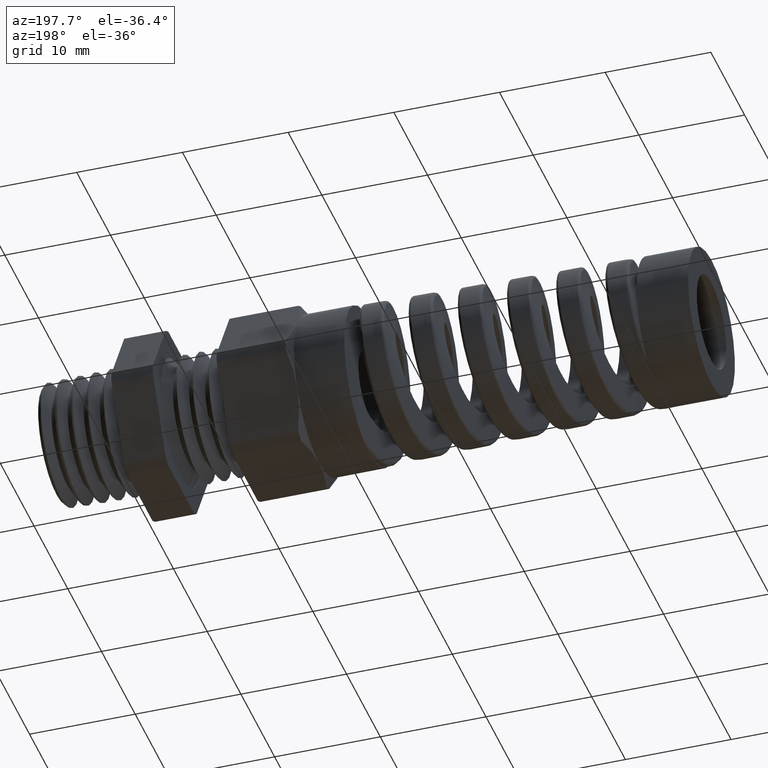
[diagram: clean part render]
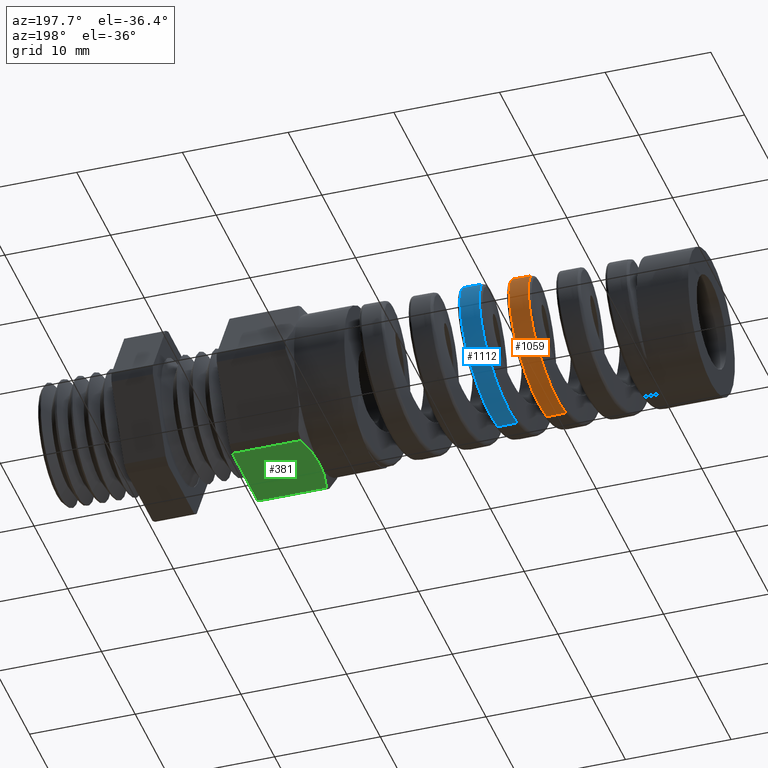
[diagram: same view with three faces highlighted in distinct colors, each labeled with its STEP entity id]
A machine part, auxiliary view with three faces highlighted in distinct colors.
Their STEP definitions:

[orange] entity #1059 — the highlighted conical surface has half-angle 1 deg.
#1059 = ADVANCED_FACE ( 'NONE', ( #5637 ), #5636, .T. ) ;
#1060 = ORIENTED_EDGE ( 'NONE', *, *, #1095, .T. ) ;
#1088 = VERTEX_POINT ( 'NONE', #7321 ) ;
#1092 = VERTEX_POINT ( 'NONE', #7406 ) ;
#1093 = ORIENTED_EDGE ( 'NONE', *, *, #1115, .T. ) ;
#1094 = VERTEX_POINT ( 'NONE', #7445 ) ;
#1095 = EDGE_CURVE ( 'NONE', #1088, #1092, #7443, .T. ) ;
#1107 = ORIENTED_EDGE ( 'NONE', *, *, #1108, .T. ) ;
#1108 = EDGE_CURVE ( 'NONE', #1094, #1109, #7520, .T. ) ;
#1109 = VERTEX_POINT ( 'NONE', #7642 ) ;
#1110 = ORIENTED_EDGE ( 'NONE', *, *, #1111, .F. ) ;
#1111 = EDGE_CURVE ( 'NONE', #1088, #1109, #7641, .T. ) ;
#1115 = EDGE_CURVE ( 'NONE', #1092, #1094, #7630, .T. ) ;
#1121 = EDGE_LOOP ( 'NONE', ( #1060, #1093, #1107, #1110 ) ) ;
#5632 = DIRECTION ( 'NONE',  ( 0.0000000000000000000, 0.0000000000000000000, -1.000000000000000000 ) ) ;
#5633 = DIRECTION ( 'NONE',  ( 1.000000000000000000, 0.0000000000000000000, 0.0000000000000000000 ) ) ;
#5634 = CARTESIAN_POINT ( 'NONE',  ( -0.6687499999999999600, 0.0000000000000000000, 0.0000000000000000000 ) ) ;
#5635 = AXIS2_PLACEMENT_3D ( 'NONE', #5634, #5633, #5632 ) ;
#5636 = CONICAL_SURFACE ( 'NONE', #5635, 0.2949999999999999800, 0.01745329251994342000 ) ;
#5637 = FACE_OUTER_BOUND ( 'NONE', #1121, .T. ) ;
#7321 = CARTESIAN_POINT ( 'NONE',  ( -1.586967370146656000, -8.417122530337597100E-014, -0.2789724561858728000 ) ) ;
#7406 = CARTESIAN_POINT ( 'NONE',  ( -1.496109359728096600, 8.002831743863339800E-013, 0.2805583886569774100 ) ) ;
#7408 = CARTESIAN_POINT ( 'NONE',  ( -1.513110849793759500, 0.1556788391959185400, 0.2335793244681691200 ) ) ;
#7409 = CARTESIAN_POINT ( 'NONE',  ( -1.514994570099448900, 0.1703354988591695400, 0.2227058327542272300 ) ) ;
#7410 = CARTESIAN_POINT ( 'NONE',  ( -1.516885506315558900, 0.1844960618386134700, 0.2110800219764213400 ) ) ;
#7411 = CARTESIAN_POINT ( 'NONE',  ( -1.517840461968148000, 0.1913636095300180500, 0.2048531593440207400 ) ) ;
#7412 = CARTESIAN_POINT ( 'NONE',  ( -1.520684673910040800, 0.2108566704722008900, 0.1853378106052884500 ) ) ;
#7413 = CARTESIAN_POINT ( 'NONE',  ( -1.522555314465035700, 0.2224121007027685700, 0.1712315819885418300 ) ) ;
#7414 = CARTESIAN_POINT ( 'NONE',  ( -1.526324096096505400, 0.2426999007746892000, 0.1408804732560915200 ) ) ;
#7415 = CARTESIAN_POINT ( 'NONE',  ( -1.528241391824345600, 0.2514844907948085000, 0.1244525455130138100 ) ) ;
#7416 = CARTESIAN_POINT ( 'NONE',  ( -1.532024259827501800, 0.2654719640076257400, 0.09066724487082188100 ) ) ;
#7417 = CARTESIAN_POINT ( 'NONE',  ( -1.533898665669906100, 0.2707708128520477900, 0.07323056716196335600 ) ) ;
#7418 = CARTESIAN_POINT ( 'NONE',  ( -1.536737944896176700, 0.2761519407258676800, 0.04625737354977232200 ) ) ;
#7419 = CARTESIAN_POINT ( 'NONE',  ( -1.537694292095382000, 0.2775169117848386200, 0.03708061587406606000 ) ) ;
#7420 = CARTESIAN_POINT ( 'NONE',  ( -1.539590755077823600, 0.2793182667241571600, 0.01879863939146259000 ) ) ;
#7421 = CARTESIAN_POINT ( 'NONE',  ( -1.540533353873124300, 0.2797642999802527100, 0.009670677997629531900 ) ) ;
#7422 = CARTESIAN_POINT ( 'NONE',  ( -1.543358977278022300, 0.2797693163182624100, -0.01767351891318006900 ) ) ;
#7423 = CARTESIAN_POINT ( 'NONE',  ( -1.545240008939636800, 0.2780081188315405300, -0.03585043476617247300 ) ) ;
#7424 = CARTESIAN_POINT ( 'NONE',  ( -1.549066083156121800, 0.2708131879331523400, -0.07208765652925806800 ) ) ;
#7425 = CARTESIAN_POINT ( 'NONE',  ( -1.550949985556431900, 0.2654860421542251100, -0.08958878699798725200 ) ) ;
#7426 = CARTESIAN_POINT ( 'NONE',  ( -1.553775312701966900, 0.2550325882058343500, -0.1148505546039602600 ) ) ;
#7427 = CARTESIAN_POINT ( 'NONE',  ( -1.554717851971338900, 0.2511335198793862000, -0.1231105112726528600 ) ) ;
#7428 = CARTESIAN_POINT ( 'NONE',  ( -1.556614585461594700, 0.2424889143296625700, -0.1393013310130534200 ) ) ;
#7429 = CARTESIAN_POINT ( 'NONE',  ( -1.557572731337894900, 0.2377189308795182600, -0.1472619119195425800 ) ) ;
#7430 = CARTESIAN_POINT ( 'NONE',  ( -1.560420078464774800, 0.2224212575994371800, -0.1701468332909421000 ) ) ;
#7431 = CARTESIAN_POINT ( 'NONE',  ( -1.562299255236198300, 0.2108528791031591100, -0.1842309348239542200 ) ) ;
#7432 = CARTESIAN_POINT ( 'NONE',  ( -1.566088139012995300, 0.1850146368401151000, -0.2100776183753747000 ) ) ;
#7433 = CARTESIAN_POINT ( 'NONE',  ( -1.568009642969026500, 0.1706069911901408300, -0.2218943041436421400 ) ) ;
#7434 = CARTESIAN_POINT ( 'NONE',  ( -1.571788119749637700, 0.1402265868573209500, -0.2421641886025169300 ) ) ;
#7435 = CARTESIAN_POINT ( 'NONE',  ( -1.573664103795690200, 0.1241483496437573600, -0.2507589757223159200 ) ) ;
#7436 = CARTESIAN_POINT ( 'NONE',  ( -1.576517925280433800, 0.09867884702267414000, -0.2612935597010561700 ) ) ;
#7437 = CARTESIAN_POINT ( 'NONE',  ( -1.577477866101587800, 0.08994180723877785700, -0.2644098357418993600 ) ) ;
#7438 = CARTESIAN_POINT ( 'NONE',  ( -1.579378564617366100, 0.07239261367281903100, -0.2697088776556088600 ) ) ;
#7439 = CARTESIAN_POINT ( 'NONE',  ( -1.580324469058421300, 0.06353523256799081800, -0.2719129025889888100 ) ) ;
#7440 = CARTESIAN_POINT ( 'NONE',  ( -1.583161185003857800, 0.03672034691231017300, -0.2772117795109261800 ) ) ;
#7441 = CARTESIAN_POINT ( 'NONE',  ( -1.585057455612082400, 0.01844012920980901300, -0.2790057938680865500 ) ) ;
#7442 = CARTESIAN_POINT ( 'NONE',  ( -1.586967370146656000, -8.417122530337597100E-014, -0.2789724561858728000 ) ) ;
#7443 = B_SPLINE_CURVE_WITH_KNOTS ( 'NONE', 3,
 ( #7442, #7441, #7440, #7439, #7438, #7437, #7436, #7435, #7434, #7433, #7432, #7431, #7430, #7429, #7428, #7427, #7426, #7425, #7424, #7423, #7422, #7421, #7420, #7419, #7418, #7417, #7416, #7415, #7414, #7413, #7412, #7411, #7410, #7409, #7408, #7483, #7482, #7481, #7480, #7479, #7478, #7477, #7476, #7475, #7474 ),
 .UNSPECIFIED., .F., .F.,
 ( 4, 2, 2, 2, 2, 2, 2, 2, 2, 2, 2, 2, 2, 2, 2, 2, 2, 1, 2, 2, 2, 2, 4 ),
 ( 0.08560869032127256500, 0.08701151721440444900, 0.08771293066097039800, 0.08841434410753634700, 0.08981717100066823100, 0.09121999789380012800, 0.09262282478693201200, 0.09332423823349796100, 0.09402565168006391000, 0.09542847857319579400, 0.09683130546632769100, 0.09753271891289362600, 0.09823413235945957500, 0.09963695925259145900, 0.1010397861457233400, 0.1024426130388552300, 0.1031440264854211800, 0.1038454399319871100, 0.1045468533785530600, 0.1052482668251190100, 0.1066510937182508900, 0.1073525071648168400, 0.1080539206113827800 ),
 .UNSPECIFIED. ) ;
#7445 = CARTESIAN_POINT ( 'NONE',  ( -1.424682225283209600, 3.647287461884801600E-013, 0.2818051539263494700 ) ) ;
#7474 = CARTESIAN_POINT ( 'NONE',  ( -1.496109359728096600, 8.002831743863339800E-013, 0.2805583886569774100 ) ) ;
#7475 = CARTESIAN_POINT ( 'NONE',  ( -1.497054379698786500, 0.009154564446061337600, 0.2805418932720044600 ) ) ;
#7476 = CARTESIAN_POINT ( 'NONE',  ( -1.498008885635690100, 0.01840200511251018400, 0.2800722485358943000 ) ) ;
#7477 = CARTESIAN_POINT ( 'NONE',  ( -1.499906251441030000, 0.03671538497857682000, 0.2782310165395065500 ) ) ;
#7478 = CARTESIAN_POINT ( 'NONE',  ( -1.500847730750519200, 0.04576318288822298800, 0.2768673087500764800 ) ) ;
#7479 = CARTESIAN_POINT ( 'NONE',  ( -1.503665730500103800, 0.07258711483947921600, 0.2714825994286077500 ) ) ;
#7480 = CARTESIAN_POINT ( 'NONE',  ( -1.505535719737208600, 0.09004681513396270400, 0.2661802068508624100 ) ) ;
#7481 = CARTESIAN_POINT ( 'NONE',  ( -1.508386667636961300, 0.1155758695175001500, 0.2555776412411004400 ) ) ;
#7482 = CARTESIAN_POINT ( 'NONE',  ( -1.509339181437512800, 0.1239232464986376600, 0.2516151555110003300 ) ) ;
#7483 = CARTESIAN_POINT ( 'NONE',  ( -1.511228529771848400, 0.1400473186945486700, 0.2429720507596754800 ) ) ;
#7520 = B_SPLINE_CURVE_WITH_KNOTS ( 'NONE', 3,
 ( #7610, #7609, #7608, #7607, #7606, #7605, #7604, #7603, #7602, #7601, #7600, #7599, #7598, #7597, #7596, #7595, #7594, #7593, #7592, #7591, #7590, #7589, #7588, #7587, #7586, #7585, #7584, #7583, #7582, #7581, #7580, #7579, #7578, #7577, #7576, #7575, #7574, #7573, #7572, #7571, #7570, #7569, #7568 ),
 .UNSPECIFIED., .F., .F.,
 ( 4, 2, 2, 2, 1, 2, 2, 2, 2, 2, 2, 2, 2, 2, 2, 2, 2, 2, 2, 2, 2, 4 ),
 ( 0.1430167359979316300, 0.1444234173814577000, 0.1458300987649837600, 0.1465334394567467900, 0.1472367801485098300, 0.1479401208402728600, 0.1486434615320358900, 0.1500501429155619600, 0.1514568242990880200, 0.1528635056826140900, 0.1535668463743771200, 0.1542701870661401500, 0.1556768684496662400, 0.1570835498331923100, 0.1577868905249553400, 0.1584902312167183700, 0.1598969126002444400, 0.1613035939837705000, 0.1627102753672965700, 0.1634136160590596300, 0.1641169567508226600, 0.1655236381343487300 ),
 .UNSPECIFIED. ) ;
#7568 = CARTESIAN_POINT ( 'NONE',  ( -1.515824475806052200, -1.017250759133178100E-015, -0.2802142600257693800 ) ) ;
#7569 = CARTESIAN_POINT ( 'NONE',  ( -1.513907059052255900, 0.01854011021240720800, -0.2802477286597014300 ) ) ;
#7570 = CARTESIAN_POINT ( 'NONE',  ( -1.512011065349929700, 0.03686125889220819000, -0.2784487134757090400 ) ) ;
#7571 = CARTESIAN_POINT ( 'NONE',  ( -1.509166116442926200, 0.06379930321004787000, -0.2731274478004392400 ) ) ;
#7572 = CARTESIAN_POINT ( 'NONE',  ( -1.508216526893202200, 0.07270006975640901100, -0.2709133813581038900 ) ) ;
#7573 = CARTESIAN_POINT ( 'NONE',  ( -1.506306917598595000, 0.09034052823200935900, -0.2655873484677180300 ) ) ;
#7574 = CARTESIAN_POINT ( 'NONE',  ( -1.505342490997912700, 0.09911948258004313300, -0.2624556144274042800 ) ) ;
#7575 = CARTESIAN_POINT ( 'NONE',  ( -1.502480966007582600, 0.1246811291448037800, -0.2518835154851732900 ) ) ;
#7576 = CARTESIAN_POINT ( 'NONE',  ( -1.500599432401587700, 0.1408297855314051300, -0.2432545490446857700 ) ) ;
#7577 = CARTESIAN_POINT ( 'NONE',  ( -1.496807849858051000, 0.1713615464006110800, -0.2228859676041822800 ) ) ;
#7578 = CARTESIAN_POINT ( 'NONE',  ( -1.494882154305593700, 0.1858332431490035700, -0.2110156400264046900 ) ) ;
#7579 = CARTESIAN_POINT ( 'NONE',  ( -1.491084843256544700, 0.2117750609152869200, -0.1850678727360698700 ) ) ;
#7580 = CARTESIAN_POINT ( 'NONE',  ( -1.489196556941433800, 0.2233994979713714900, -0.1709204284641854000 ) ) ;
#7581 = CARTESIAN_POINT ( 'NONE',  ( -1.486336422876976600, 0.2387795474586028900, -0.1479127621230209300 ) ) ;
#7582 = CARTESIAN_POINT ( 'NONE',  ( -1.485375327007302000, 0.2435690224514156200, -0.1399182952848487300 ) ) ;
#7583 = CARTESIAN_POINT ( 'NONE',  ( -1.483474180560885800, 0.2522447795236572000, -0.1236697345677430800 ) ) ;
#7584 = CARTESIAN_POINT ( 'NONE',  ( -1.482529192405276100, 0.2561599259730749100, -0.1153773610342700600 ) ) ;
#7585 = CARTESIAN_POINT ( 'NONE',  ( -1.479695759200092600, 0.2666602723646784300, -0.09000681225952868200 ) ) ;
#7586 = CARTESIAN_POINT ( 'NONE',  ( -1.477801922148382000, 0.2720253385209826500, -0.07237412790813567400 ) ) ;
#7587 = CARTESIAN_POINT ( 'NONE',  ( -1.473970694270922800, 0.2792413946338959100, -0.03602241292163350900 ) ) ;
#7588 = CARTESIAN_POINT ( 'NONE',  ( -1.472081984037360500, 0.2810126099612303400, -0.01777374197619469400 ) ) ;
#7589 = CARTESIAN_POINT ( 'NONE',  ( -1.469245175367554400, 0.2810091089477689800, 0.009700286949967855100 ) ) ;
#7590 = CARTESIAN_POINT ( 'NONE',  ( -1.468298820027905900, 0.2805613394764421300, 0.01887524288419123800 ) ) ;
#7591 = CARTESIAN_POINT ( 'NONE',  ( -1.466394149666539800, 0.2787497223132775500, 0.03725883339077034500 ) ) ;
#7592 = CARTESIAN_POINT ( 'NONE',  ( -1.465435744182050000, 0.2773790530822541900, 0.04646760679894846500 ) ) ;
#7593 = CARTESIAN_POINT ( 'NONE',  ( -1.462590496158362700, 0.2719791086687902100, 0.07353656795850058200 ) ) ;
#7594 = CARTESIAN_POINT ( 'NONE',  ( -1.460711832285626300, 0.2666600844902540800, 0.09105088684051788900 ) ) ;
#7595 = CARTESIAN_POINT ( 'NONE',  ( -1.456916299025595100, 0.2526001482012903400, 0.1250131622910084800 ) ) ;
#7596 = CARTESIAN_POINT ( 'NONE',  ( -1.454991766486412300, 0.2437803818909428900, 0.1415034193346358900 ) ) ;
#7597 = CARTESIAN_POINT ( 'NONE',  ( -1.451210585674233200, 0.2234132513978171200, 0.1719760000840733800 ) ) ;
#7598 = CARTESIAN_POINT ( 'NONE',  ( -1.449333534040754700, 0.2118043098038021900, 0.1861526157151804100 ) ) ;
#7599 = CARTESIAN_POINT ( 'NONE',  ( -1.446477023687713600, 0.1921982927525553200, 0.2057795026855290300 ) ) ;
#7600 = CARTESIAN_POINT ( 'NONE',  ( -1.445520926926867800, 0.1853112905966750900, 0.2120224236296460200 ) ) ;
#7601 = CARTESIAN_POINT ( 'NONE',  ( -1.443626535903144400, 0.1711007819677904900, 0.2236893353194760500 ) ) ;
#7602 = CARTESIAN_POINT ( 'NONE',  ( -1.441739954758139100, 0.1563861378467454600, 0.2346074184448256900 ) ) ;
#7603 = CARTESIAN_POINT ( 'NONE',  ( -1.439851028698902100, 0.1406785613915476900, 0.2440473348613747000 ) ) ;
#7604 = CARTESIAN_POINT ( 'NONE',  ( -1.437952952592599800, 0.1244679496106839700, 0.2527369093696783000 ) ) ;
#7605 = CARTESIAN_POINT ( 'NONE',  ( -1.436994090914047300, 0.1160635951081423900, 0.2567250030088226700 ) ) ;
#7606 = CARTESIAN_POINT ( 'NONE',  ( -1.434136226435637200, 0.09045714394084913800, 0.2673580682693082500 ) ) ;
#7607 = CARTESIAN_POINT ( 'NONE',  ( -1.432261417663591900, 0.07292825161279994900, 0.2726848994732552500 ) ) ;
#7608 = CARTESIAN_POINT ( 'NONE',  ( -1.428490737858077600, 0.03698568379209238300, 0.2799012786592580700 ) ) ;
#7609 = CARTESIAN_POINT ( 'NONE',  ( -1.426575118891028700, 0.01837353674951972300, 0.2817721133454988400 ) ) ;
#7610 = CARTESIAN_POINT ( 'NONE',  ( -1.424682225283209600, 3.647287461884801600E-013, 0.2818051539263494700 ) ) ;
#7627 = DIRECTION ( 'NONE',  ( 0.9998476951563912700, 2.137303368083806700E-018, 0.01745240643728363700 ) ) ;
#7628 = VECTOR ( 'NONE', #7627, 39.37007874015748100 ) ;
#7629 = CARTESIAN_POINT ( 'NONE',  ( -0.6687499999999999600, 3.612708057484692000E-017, 0.2949999999999999800 ) ) ;
#7630 = LINE ( 'NONE', #7629, #7628 ) ;
#7638 = DIRECTION ( 'NONE',  ( 0.9998476951563912700, 0.0000000000000000000, -0.01745240643728363700 ) ) ;
#7639 = VECTOR ( 'NONE', #7638, 39.37007874015748100 ) ;
#7640 = CARTESIAN_POINT ( 'NONE',  ( -0.6687499999999999600, 0.0000000000000000000, -0.2949999999999999800 ) ) ;
#7641 = LINE ( 'NONE', #7640, #7639 ) ;
#7642 = CARTESIAN_POINT ( 'NONE',  ( -1.515824475806052200, -1.017250759133178100E-015, -0.2802142600257693800 ) ) ;

[blue] entity #1112 — the highlighted conical surface has half-angle 1 deg.
#1085 = ORIENTED_EDGE ( 'NONE', *, *, #1086, .T. ) ;
#1086 = EDGE_CURVE ( 'NONE', #1106, #1087, #7326, .T. ) ;
#1087 = VERTEX_POINT ( 'NONE', #7322 ) ;
#1089 = ORIENTED_EDGE ( 'NONE', *, *, #1090, .T. ) ;
#1090 = EDGE_CURVE ( 'NONE', #1087, #1091, #7407, .T. ) ;
#1091 = VERTEX_POINT ( 'NONE', #7320 ) ;
#1102 = ORIENTED_EDGE ( 'NONE', *, *, #1103, .F. ) ;
#1103 = EDGE_CURVE ( 'NONE', #1114, #1091, #7492, .T. ) ;
#1104 = ORIENTED_EDGE ( 'NONE', *, *, #1105, .T. ) ;
#1105 = EDGE_CURVE ( 'NONE', #1114, #1106, #7487, .T. ) ;
#1106 = VERTEX_POINT ( 'NONE', #7488 ) ;
#1112 = ADVANCED_FACE ( 'NONE', ( #7637 ), #7635, .T. ) ;
#1113 = EDGE_LOOP ( 'NONE', ( #1104, #1085, #1089, #1102 ) ) ;
#1114 = VERTEX_POINT ( 'NONE', #7636 ) ;
#7320 = CARTESIAN_POINT ( 'NONE',  ( -1.333532492928136700, 4.183276635515451400E-016, -0.2833961784227969100 ) ) ;
#7322 = CARTESIAN_POINT ( 'NONE',  ( -1.242389884953484200, -1.119310506190036000E-012, 0.2849870785627215400 ) ) ;
#7323 = DIRECTION ( 'NONE',  ( 0.9998476951563912700, 2.137303368083806700E-018, 0.01745240643728363700 ) ) ;
#7324 = VECTOR ( 'NONE', #7323, 39.37007874015748100 ) ;
#7325 = CARTESIAN_POINT ( 'NONE',  ( -0.6687499999999999600, 3.612708057484692000E-017, 0.2949999999999999800 ) ) ;
#7326 = LINE ( 'NONE', #7325, #7324 ) ;
#7362 = CARTESIAN_POINT ( 'NONE',  ( -1.331634334730868800, 0.01851915997278168200, -0.2834293108973741600 ) ) ;
#7363 = CARTESIAN_POINT ( 'NONE',  ( -1.329742786458878000, 0.03702481373963924900, -0.2816599243796380500 ) ) ;
#7364 = CARTESIAN_POINT ( 'NONE',  ( -1.325906407626043800, 0.07385030705563976100, -0.2743852221706516400 ) ) ;
#7365 = CARTESIAN_POINT ( 'NONE',  ( -1.324019497577883200, 0.09160603333586660200, -0.2689962532154782600 ) ) ;
#7366 = CARTESIAN_POINT ( 'NONE',  ( -1.321176461558337200, 0.1172868902318123900, -0.2583897192720112100 ) ) ;
#7367 = CARTESIAN_POINT ( 'NONE',  ( -1.320226818646506700, 0.1256872390023127400, -0.2544306066078017000 ) ) ;
#7368 = CARTESIAN_POINT ( 'NONE',  ( -1.318314816174991400, 0.1421597170944340300, -0.2456456050470635600 ) ) ;
#7369 = CARTESIAN_POINT ( 'NONE',  ( -1.317350341671649200, 0.1502461670001548300, -0.2408036580856358400 ) ) ;
#7370 = CARTESIAN_POINT ( 'NONE',  ( -1.314489362577466100, 0.1734808410608864300, -0.2252848697339304400 ) ) ;
#7371 = CARTESIAN_POINT ( 'NONE',  ( -1.312606975232630800, 0.1877953278278312900, -0.2135386210133433400 ) ) ;
#7372 = CARTESIAN_POINT ( 'NONE',  ( -1.308812776134808500, 0.2140855171200515300, -0.1872720199700375900 ) ) ;
#7373 = CARTESIAN_POINT ( 'NONE',  ( -1.306890066642195400, 0.2260896400171272800, -0.1726399179915904800 ) ) ;
#7374 = CARTESIAN_POINT ( 'NONE',  ( -1.303099404960015800, 0.2466834419011714500, -0.1417953262275332400 ) ) ;
#7375 = CARTESIAN_POINT ( 'NONE',  ( -1.301211796836690500, 0.2554275910945892900, -0.1254579041127966700 ) ) ;
#7376 = CARTESIAN_POINT ( 'NONE',  ( -1.298343373850806800, 0.2661559920203113700, -0.09955031714156585600 ) ) ;
#7377 = CARTESIAN_POINT ( 'NONE',  ( -1.297382492590519700, 0.2693215147124706200, -0.09068585223107923600 ) ) ;
#7378 = CARTESIAN_POINT ( 'NONE',  ( -1.295482762242432300, 0.2747107808911495300, -0.07287541889260673600 ) ) ;
#7379 = CARTESIAN_POINT ( 'NONE',  ( -1.293593804735205800, 0.2792006452543648900, -0.05488802818421805600 ) ) ;
#7380 = CARTESIAN_POINT ( 'NONE',  ( -1.291706155054656900, 0.2819184303328159900, -0.03655406168698447500 ) ) ;
#7381 = CARTESIAN_POINT ( 'NONE',  ( -1.289809189234547100, 0.2837382194625419100, -0.01804551148777121900 ) ) ;
#7382 = CARTESIAN_POINT ( 'NONE',  ( -1.288851062786557700, 0.2841982673230558600, -0.008655055532402089500 ) ) ;
#7383 = CARTESIAN_POINT ( 'NONE',  ( -1.285985897316400500, 0.2841791797819723200, 0.01940930120193923300 ) ) ;
#7384 = CARTESIAN_POINT ( 'NONE',  ( -1.284099949617327500, 0.2823367516661060600, 0.03785236000965427200 ) ) ;
#7385 = CARTESIAN_POINT ( 'NONE',  ( -1.281258332153921300, 0.2769047884945902100, 0.06512331168897370100 ) ) ;
#7386 = CARTESIAN_POINT ( 'NONE',  ( -1.280309478375943400, 0.2746462279965108900, 0.07414760295083194800 ) ) ;
#7387 = CARTESIAN_POINT ( 'NONE',  ( -1.278400178924638000, 0.2692070474221360300, 0.09205941388812163800 ) ) ;
#7388 = CARTESIAN_POINT ( 'NONE',  ( -1.277444033970703600, 0.2660350279054453100, 0.1009011206064763400 ) ) ;
#7389 = CARTESIAN_POINT ( 'NONE',  ( -1.274602707567868500, 0.2553443823003614900, 0.1266584843532217700 ) ) ;
#7390 = CARTESIAN_POINT ( 'NONE',  ( -1.272726016862581400, 0.2466121384969403900, 0.1429861440389735300 ) ) ;
#7391 = CARTESIAN_POINT ( 'NONE',  ( -1.269878734617309500, 0.2311011841453291000, 0.1662024167732205300 ) ) ;
#7392 = CARTESIAN_POINT ( 'NONE',  ( -1.268918955666127300, 0.2254912868407589200, 0.1737667575274129700 ) ) ;
#7393 = CARTESIAN_POINT ( 'NONE',  ( -1.267011471082266200, 0.2136313403439739100, 0.1882068133733252300 ) ) ;
#7394 = CARTESIAN_POINT ( 'NONE',  ( -1.266063674229627600, 0.2073862538330075200, 0.1950872574770013100 ) ) ;
#7395 = CARTESIAN_POINT ( 'NONE',  ( -1.263226428943072400, 0.1877304019130446600, 0.2147348142492662700 ) ) ;
#7396 = CARTESIAN_POINT ( 'NONE',  ( -1.261345836891008400, 0.1734075702860590800, 0.2265177729274751300 ) ) ;
#7397 = CARTESIAN_POINT ( 'NONE',  ( -1.257530307208634800, 0.1422447477802156700, 0.2473556941659464900 ) ) ;
#7398 = CARTESIAN_POINT ( 'NONE',  ( -1.255642351208352300, 0.1257927615500181200, 0.2561344957608028800 ) ) ;
#7399 = CARTESIAN_POINT ( 'NONE',  ( -1.252813216419012400, 0.1001393448841524100, 0.2667804212519583300 ) ) ;
#7400 = CARTESIAN_POINT ( 'NONE',  ( -1.251868999520454200, 0.09140973363116500200, 0.2699155145793638000 ) ) ;
#7401 = CARTESIAN_POINT ( 'NONE',  ( -1.249969381437568100, 0.07358786899186285600, 0.2753431300321352900 ) ) ;
#7402 = CARTESIAN_POINT ( 'NONE',  ( -1.249008959476694900, 0.06444671330565229800, 0.2776428019694561200 ) ) ;
#7403 = CARTESIAN_POINT ( 'NONE',  ( -1.246153352649397700, 0.03698921408791917100, 0.2831261732485475000 ) ) ;
#7404 = CARTESIAN_POINT ( 'NONE',  ( -1.244276602621644500, 0.01855580024097971300, 0.2849541457833955100 ) ) ;
#7405 = CARTESIAN_POINT ( 'NONE',  ( -1.242389884953484200, -1.119310506190036000E-012, 0.2849870785627215400 ) ) ;
#7407 = B_SPLINE_CURVE_WITH_KNOTS ( 'NONE', 3,
 ( #7405, #7404, #7403, #7402, #7401, #7400, #7399, #7398, #7397, #7396, #7395, #7394, #7393, #7392, #7391, #7390, #7389, #7388, #7387, #7386, #7385, #7384, #7383, #7382, #7381, #7380, #7379, #7378, #7377, #7376, #7375, #7374, #7373, #7372, #7371, #7370, #7369, #7368, #7367, #7366, #7365, #7364, #7363, #7362, #7446 ),
 .UNSPECIFIED., .F., .F.,
 ( 4, 2, 2, 2, 2, 2, 2, 2, 2, 2, 2, 2, 2, 1, 2, 2, 2, 2, 2, 2, 2, 2, 4 ),
 ( 0.09760750882082160100, 0.09903044666253864300, 0.09974191558339716400, 0.1004533845042556700, 0.1018763223459727100, 0.1032992601876897600, 0.1040107291085482600, 0.1047221980294067900, 0.1061451358711238300, 0.1068566047919823500, 0.1075680737128408600, 0.1089910115545579000, 0.1097024804754164200, 0.1104139493962749400, 0.1111254183171334500, 0.1118368872379919700, 0.1132598250797090100, 0.1146827629214260400, 0.1161057007631430800, 0.1168171696840016000, 0.1175286386048601300, 0.1189515764465771700, 0.1203745142882942100 ),
 .UNSPECIFIED. ) ;
#7446 = CARTESIAN_POINT ( 'NONE',  ( -1.333532492928136700, 4.183276635515451400E-016, -0.2833961784227969100 ) ) ;
#7484 = CARTESIAN_POINT ( 'NONE',  ( -1.401464967749319400, 0.03692413679248169500, -0.2804054733823515600 ) ) ;
#7485 = CARTESIAN_POINT ( 'NONE',  ( -1.403357480913037400, 0.01843135554809960400, -0.2821773787239085200 ) ) ;
#7486 = CARTESIAN_POINT ( 'NONE',  ( -1.405247317430771100, -3.085267671335399900E-016, -0.2821443915047877100 ) ) ;
#7487 = B_SPLINE_CURVE_WITH_KNOTS ( 'NONE', 3,
 ( #7486, #7485, #7484, #7564, #7563, #7562, #7561, #7560, #7559, #7558, #7557, #7556, #7555, #7554, #7553, #7552, #7551, #7550, #7549, #7548, #7547, #7546, #7545, #7544, #7543, #7542, #7541, #7540, #7539, #7538, #7537, #7536, #7535, #7534, #7533, #7532, #7531, #7530, #7529, #7528, #7527, #7526, #7525, #7524, #7523 ),
 .UNSPECIFIED., .F., .F.,
 ( 4, 2, 2, 2, 2, 2, 2, 2, 2, 2, 2, 2, 2, 2, 2, 2, 1, 2, 2, 2, 2, 2, 4 ),
 ( 0.1306311733183600200, 0.1320500597961231100, 0.1334689462738862000, 0.1341783895127677500, 0.1348878327516492800, 0.1363067192294124000, 0.1370161624682939300, 0.1377256057071754900, 0.1391444921849385700, 0.1405633786627016900, 0.1412728219015832500, 0.1419822651404647800, 0.1434011516182278600, 0.1448200380959909800, 0.1462389245737540600, 0.1469483678126356200, 0.1476578110515171500, 0.1483672542903987100, 0.1490766975292802700, 0.1504955840070433500, 0.1512050272459249100, 0.1519144704848064400, 0.1533333569625695600 ),
 .UNSPECIFIED. ) ;
#7488 = CARTESIAN_POINT ( 'NONE',  ( -1.314393169253360400, -5.788518035903223500E-013, 0.2837302565602222700 ) ) ;
#7489 = DIRECTION ( 'NONE',  ( 0.9998476951563912700, 0.0000000000000000000, -0.01745240643728363700 ) ) ;
#7490 = VECTOR ( 'NONE', #7489, 39.37007874015748100 ) ;
#7491 = CARTESIAN_POINT ( 'NONE',  ( -0.6687499999999999600, 0.0000000000000000000, -0.2949999999999999800 ) ) ;
#7492 = LINE ( 'NONE', #7491, #7490 ) ;
#7523 = CARTESIAN_POINT ( 'NONE',  ( -1.314393169253360400, -5.788518035903223500E-013, 0.2837302565602222700 ) ) ;
#7524 = CARTESIAN_POINT ( 'NONE',  ( -1.316278426222088100, 0.01851837736630582800, 0.2836973492774644800 ) ) ;
#7525 = CARTESIAN_POINT ( 'NONE',  ( -1.318147064880010000, 0.03685858127206206900, 0.2818687258081021800 ) ) ;
#7526 = CARTESIAN_POINT ( 'NONE',  ( -1.320981079805968200, 0.06409591464138401900, 0.2764327135723540500 ) ) ;
#7527 = CARTESIAN_POINT ( 'NONE',  ( -1.321935939374661700, 0.07317667991189198700, 0.2741532715127778500 ) ) ;
#7528 = CARTESIAN_POINT ( 'NONE',  ( -1.323837708958407500, 0.09099024480199925700, 0.2687318195076414100 ) ) ;
#7529 = CARTESIAN_POINT ( 'NONE',  ( -1.324782135516477100, 0.09970111368408714200, 0.2656026532861502400 ) ) ;
#7530 = CARTESIAN_POINT ( 'NONE',  ( -1.327606661400047000, 0.1252609743799320800, 0.2549943007406070800 ) ) ;
#7531 = CARTESIAN_POINT ( 'NONE',  ( -1.329477366947061600, 0.1415426786534662900, 0.2463057212396961800 ) ) ;
#7532 = CARTESIAN_POINT ( 'NONE',  ( -1.332326212920103400, 0.1647868786564844800, 0.2307757424106239600 ) ) ;
#7533 = CARTESIAN_POINT ( 'NONE',  ( -1.333278071448098100, 0.1722939589651260300, 0.2252028534248469400 ) ) ;
#7534 = CARTESIAN_POINT ( 'NONE',  ( -1.335165646325260600, 0.1865965487719860600, 0.2134586323799221600 ) ) ;
#7535 = CARTESIAN_POINT ( 'NONE',  ( -1.337046077160495500, 0.2002618480653424700, 0.2010676069585597100 ) ) ;
#7536 = CARTESIAN_POINT ( 'NONE',  ( -1.338930366510764800, 0.2126666585847514200, 0.1873999029894573600 ) ) ;
#7537 = CARTESIAN_POINT ( 'NONE',  ( -1.340824763201644600, 0.2244303893030959500, 0.1730840748786170400 ) ) ;
#7538 = CARTESIAN_POINT ( 'NONE',  ( -1.341782366474563600, 0.2300195123783227700, 0.1655576208781077700 ) ) ;
#7539 = CARTESIAN_POINT ( 'NONE',  ( -1.344633671265331500, 0.2455261782650966200, 0.1423605455064135500 ) ) ;
#7540 = CARTESIAN_POINT ( 'NONE',  ( -1.346505413097725400, 0.2542178184211927300, 0.1260922128114092500 ) ) ;
#7541 = CARTESIAN_POINT ( 'NONE',  ( -1.350272209570028600, 0.2683773169670414800, 0.09199091671379365500 ) ) ;
#7542 = CARTESIAN_POINT ( 'NONE',  ( -1.352186295676425500, 0.2738617375680366100, 0.07396438499652931200 ) ) ;
#7543 = CARTESIAN_POINT ( 'NONE',  ( -1.355967707079372100, 0.2810926775441917600, 0.03768984633052904100 ) ) ;
#7544 = CARTESIAN_POINT ( 'NONE',  ( -1.357846404505576500, 0.2829179836787826300, 0.01934812141154741700 ) ) ;
#7545 = CARTESIAN_POINT ( 'NONE',  ( -1.360692339323948500, 0.2829472878054128900, -0.008469059484900804500 ) ) ;
#7546 = CARTESIAN_POINT ( 'NONE',  ( -1.361650124841084200, 0.2824950598517304000, -0.01784163575074362200 ) ) ;
#7547 = CARTESIAN_POINT ( 'NONE',  ( -1.363548372121227800, 0.2806826784184450800, -0.03633552462754023600 ) ) ;
#7548 = CARTESIAN_POINT ( 'NONE',  ( -1.364491137142189500, 0.2793277470326856500, -0.04547974697355286500 ) ) ;
#7549 = CARTESIAN_POINT ( 'NONE',  ( -1.367315643077120700, 0.2739476682995931100, -0.07260976521212633700 ) ) ;
#7550 = CARTESIAN_POINT ( 'NONE',  ( -1.369193541647694800, 0.2686199511248879600, -0.09029584745273792900 ) ) ;
#7551 = CARTESIAN_POINT ( 'NONE',  ( -1.373017218651847000, 0.2543434833423665600, -0.1248265559854626600 ) ) ;
#7552 = CARTESIAN_POINT ( 'NONE',  ( -1.374907393416895800, 0.2456003638972771000, -0.1411611191454924000 ) ) ;
#7553 = CARTESIAN_POINT ( 'NONE',  ( -1.377746282336262500, 0.2302095726208315800, -0.1642116725880907500 ) ) ;
#7554 = CARTESIAN_POINT ( 'NONE',  ( -1.378693166720800200, 0.2246947852648408800, -0.1716573601656881400 ) ) ;
#7555 = CARTESIAN_POINT ( 'NONE',  ( -1.380598444446132100, 0.2128774080525242800, -0.1860602290465745400 ) ) ;
#7556 = CARTESIAN_POINT ( 'NONE',  ( -1.381553813841171200, 0.2065897976825166500, -0.1929905280229087200 ) ) ;
#7557 = CARTESIAN_POINT ( 'NONE',  ( -1.384392717157379100, 0.1869433564750221700, -0.2126168540731420400 ) ) ;
#7558 = CARTESIAN_POINT ( 'NONE',  ( -1.386268484512559000, 0.1726922554208143200, -0.2243056122961449300 ) ) ;
#7559 = CARTESIAN_POINT ( 'NONE',  ( -1.389114584077408600, 0.1495864902406987300, -0.2397375676448877700 ) ) ;
#7560 = CARTESIAN_POINT ( 'NONE',  ( -1.390073970282225100, 0.1415476992687159900, -0.2445522475440254400 ) ) ;
#7561 = CARTESIAN_POINT ( 'NONE',  ( -1.391982368008257300, 0.1251281570509756900, -0.2533094620907084800 ) ) ;
#7562 = CARTESIAN_POINT ( 'NONE',  ( -1.392930449609354900, 0.1167588161178023900, -0.2572532945727752900 ) ) ;
#7563 = CARTESIAN_POINT ( 'NONE',  ( -1.395767577579816800, 0.09118553438849015500, -0.2678139009951650000 ) ) ;
#7564 = CARTESIAN_POINT ( 'NONE',  ( -1.397647337097208900, 0.07352057522951022100, -0.2731720376328162200 ) ) ;
#7631 = DIRECTION ( 'NONE',  ( 0.0000000000000000000, 0.0000000000000000000, -1.000000000000000000 ) ) ;
#7632 = DIRECTION ( 'NONE',  ( 1.000000000000000000, 0.0000000000000000000, 0.0000000000000000000 ) ) ;
#7633 = CARTESIAN_POINT ( 'NONE',  ( -0.6687499999999999600, 0.0000000000000000000, 0.0000000000000000000 ) ) ;
#7634 = AXIS2_PLACEMENT_3D ( 'NONE', #7633, #7632, #7631 ) ;
#7635 = CONICAL_SURFACE ( 'NONE', #7634, 0.2949999999999999800, 0.01745329251994342000 ) ;
#7636 = CARTESIAN_POINT ( 'NONE',  ( -1.405247317430771100, -3.085267671335399900E-016, -0.2821443915047877100 ) ) ;
#7637 = FACE_OUTER_BOUND ( 'NONE', #1113, .T. ) ;

[green] entity #381 — the highlighted planar face has unit normal (0, 0, -1).
#18 = VERTEX_POINT ( 'NONE', #1588 ) ;
#128 = VERTEX_POINT ( 'NONE', #1571 ) ;
#295 = VERTEX_POINT ( 'NONE', #1738 ) ;
#297 = EDGE_CURVE ( 'NONE', #18, #295, #1737, .T. ) ;
#308 = EDGE_CURVE ( 'NONE', #9926, #9924, #1779, .T. ) ;
#362 = ORIENTED_EDGE ( 'NONE', *, *, #297, .T. ) ;
#363 = ORIENTED_EDGE ( 'NONE', *, *, #364, .T. ) ;
#364 = EDGE_CURVE ( 'NONE', #295, #9924, #1893, .T. ) ;
#381 = ADVANCED_FACE ( 'NONE', ( #1904 ), #1903, .T. ) ;
#382 = EDGE_LOOP ( 'NONE', ( #383, #384, #386, #362, #363 ) ) ;
#383 = ORIENTED_EDGE ( 'NONE', *, *, #308, .F. ) ;
#384 = ORIENTED_EDGE ( 'NONE', *, *, #385, .T. ) ;
#385 = EDGE_CURVE ( 'NONE', #9926, #128, #1948, .T. ) ;
#386 = ORIENTED_EDGE ( 'NONE', *, *, #387, .T. ) ;
#387 = EDGE_CURVE ( 'NONE', #128, #18, #1941, .T. ) ;
#1571 = CARTESIAN_POINT ( 'NONE',  ( -0.6687499999999999600, 0.0000000000000000000, -0.2949999999999999800 ) ) ;
#1588 = CARTESIAN_POINT ( 'NONE',  ( -0.6483118004706872600, 0.1487923385124383400, -0.2949999999999999800 ) ) ;
#1734 = DIRECTION ( 'NONE',  ( 1.000000000000000000, 0.0000000000000000000, 0.0000000000000000000 ) ) ;
#1735 = VECTOR ( 'NONE', #1734, 39.37007874015748100 ) ;
#1736 = CARTESIAN_POINT ( 'NONE',  ( -1.612607445236302600, 0.1487923385124383400, -0.2949999999999999800 ) ) ;
#1737 = LINE ( 'NONE', #1736, #1735 ) ;
#1738 = CARTESIAN_POINT ( 'NONE',  ( -0.3920833333333332800, 0.1487923385124383400, -0.2949999999999999800 ) ) ;
#1776 = DIRECTION ( 'NONE',  ( 1.000000000000000000, 0.0000000000000000000, 0.0000000000000000000 ) ) ;
#1777 = VECTOR ( 'NONE', #1776, 39.37007874015748100 ) ;
#1778 = CARTESIAN_POINT ( 'NONE',  ( -1.612607445236302600, -0.1487923385124383400, -0.2949999999999998700 ) ) ;
#1779 = LINE ( 'NONE', #1778, #1777 ) ;
#1885 = DIRECTION ( 'NONE',  ( 0.0000000000000000000, -1.000000000000000000, 0.0000000000000000000 ) ) ;
#1886 = VECTOR ( 'NONE', #1885, 39.37007874015748100 ) ;
#1887 = CARTESIAN_POINT ( 'NONE',  ( -0.3920833333333332800, 0.2350000000000000100, -0.2949999999999999800 ) ) ;
#1893 = LINE ( 'NONE', #1887, #1886 ) ;
#1899 = DIRECTION ( 'NONE',  ( -1.000000000000000000, 0.0000000000000000000, 0.0000000000000000000 ) ) ;
#1900 = DIRECTION ( 'NONE',  ( 0.0000000000000000000, 0.0000000000000000000, -1.000000000000000000 ) ) ;
#1901 = CARTESIAN_POINT ( 'NONE',  ( -1.612607445236302600, -0.1487923385124383400, -0.2949999999999999800 ) ) ;
#1902 = AXIS2_PLACEMENT_3D ( 'NONE', #1901, #1900, #1899 ) ;
#1903 = PLANE ( 'NONE',  #1902 ) ;
#1904 = FACE_OUTER_BOUND ( 'NONE', #382, .T. ) ;
#1933 = CARTESIAN_POINT ( 'NONE',  ( -0.6483118004706872600, 0.1487923385124383400, -0.2949999999999999800 ) ) ;
#1934 = CARTESIAN_POINT ( 'NONE',  ( -0.6545892602780015700, 0.1246486267720971800, -0.2950000000000000400 ) ) ;
#1935 = CARTESIAN_POINT ( 'NONE',  ( -0.6597381713101826400, 0.1001808597390346200, -0.2950000000000000400 ) ) ;
#1936 = CARTESIAN_POINT ( 'NONE',  ( -0.6650738706461848400, 0.06279360639189927900, -0.2949999999999999800 ) ) ;
#1937 = CARTESIAN_POINT ( 'NONE',  ( -0.6664539795682503700, 0.05017414996423318100, -0.2950000000000000400 ) ) ;
#1938 = CARTESIAN_POINT ( 'NONE',  ( -0.6682886392550061400, 0.02504818793965521400, -0.2949999999999999800 ) ) ;
#1939 = CARTESIAN_POINT ( 'NONE',  ( -0.6687499999999999600, 0.01251102984057289900, -0.2949999999999999800 ) ) ;
#1940 = CARTESIAN_POINT ( 'NONE',  ( -0.6687499999999999600, 0.0000000000000000000, -0.2949999999999999800 ) ) ;
#1941 = B_SPLINE_CURVE_WITH_KNOTS ( 'NONE', 3,
 ( #1940, #1939, #1938, #1937, #1936, #1935, #1934, #1933 ),
 .UNSPECIFIED., .F., .F.,
 ( 4, 2, 2, 4 ),
 ( 0.01153918975071742900, 0.01249097848134768900, 0.01344276721197794900, 0.01534634467323847000 ),
 .UNSPECIFIED. ) ;
#1942 = CARTESIAN_POINT ( 'NONE',  ( -0.6687499999999999600, 0.0000000000000000000, -0.2949999999999999800 ) ) ;
#1943 = CARTESIAN_POINT ( 'NONE',  ( -0.6687499999999999600, -0.02503176339243230400, -0.2949999999999999800 ) ) ;
#1944 = CARTESIAN_POINT ( 'NONE',  ( -0.6668849065099121700, -0.04995790088282987100, -0.2949999999999998700 ) ) ;
#1945 = CARTESIAN_POINT ( 'NONE',  ( -0.6598382952289479900, -0.09962235669522290200, -0.2950000000000000400 ) ) ;
#1946 = CARTESIAN_POINT ( 'NONE',  ( -0.6546358786678907500, -0.1244693279789879600, -0.2949999999999999300 ) ) ;
#1947 = CARTESIAN_POINT ( 'NONE',  ( -0.6483118004706872600, -0.1487923385124383700, -0.2949999999999999800 ) ) ;
#1948 = B_SPLINE_CURVE_WITH_KNOTS ( 'NONE', 3,
 ( #1947, #1946, #1945, #1944, #1943, #1942 ),
 .UNSPECIFIED., .F., .F.,
 ( 4, 2, 4 ),
 ( 0.007730558389699222800, 0.009634874070208326900, 0.01153918975071742900 ),
 .UNSPECIFIED. ) ;
#9774 = CARTESIAN_POINT ( 'NONE',  ( -0.6483118004706872600, -0.1487923385124383700, -0.2949999999999999800 ) ) ;
#9776 = CARTESIAN_POINT ( 'NONE',  ( -0.3920833333333332800, -0.1487923385124383400, -0.2949999999999998700 ) ) ;
#9924 = VERTEX_POINT ( 'NONE', #9776 ) ;
#9926 = VERTEX_POINT ( 'NONE', #9774 ) ;